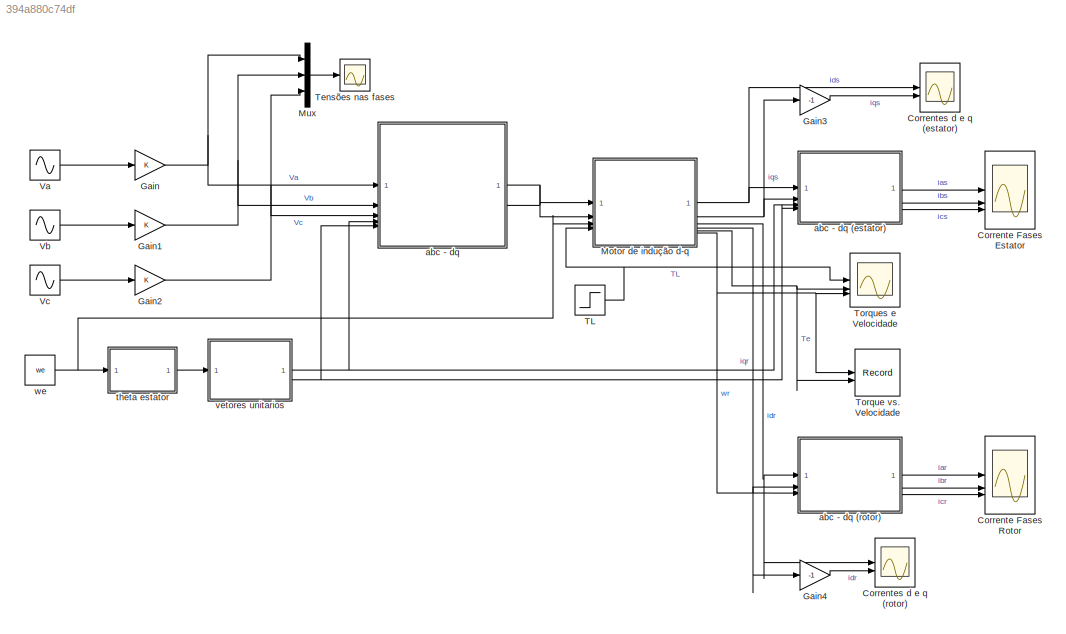
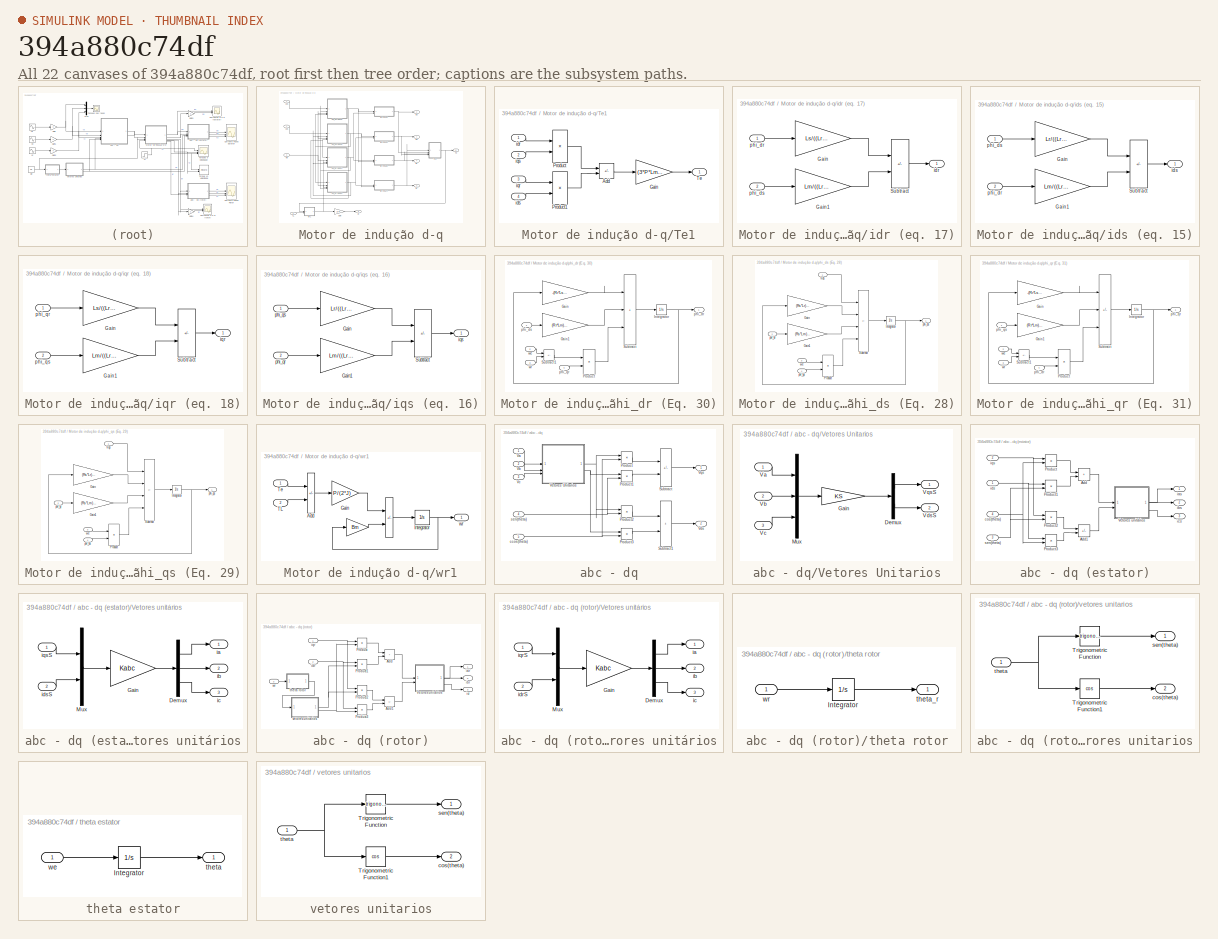
[diagram: thumbnail index - all 22 canvases of the model, root first then tree order]
MODEL slx_394a880c74df
KIND model
CONFIG AbsTol = auto
CONFIG EnableMultiTasking = on
CONFIG FixedStep = auto
CONFIG MaxStep = auto
CONFIG MinStep = auto
CONFIG RelTol = 1e-9
CONFIG SampleTimeConstraint = Unconstrained
CONFIG SolverName = ode45
CONFIG StartTime = 0.0
CONFIG StopTime = 0.3
BLOCK [Scope] Corrente Fases Estator
  Floating = off
  NumInputPorts = 3
  ScopeSpecificationString = Simulink.scopes.TimeScopeBlockCfg('CurrentConfiguration', extmgr.ConfigurationSet(extmgr.Configuration('Core','General UI',true),extmgr.Configuration('Core','Source UI',true),extmgr.Configuration('Sources','WiredSimulink',true,'DataLoggingVariableName','ScopeData2','DataLoggingSaveFormat','Array','DataLoggingDecimation','1','DataLoggingDecimateData',true),extmgr.Configuration('Visuals','Time Domai...<+2973ch>
BLOCK [Scope] Corrente Fases Rotor
  Floating = off
  NumInputPorts = 3
  ScopeSpecificationString = Simulink.scopes.TimeScopeBlockCfg('CurrentConfiguration', extmgr.ConfigurationSet(extmgr.Configuration('Core','General UI',true),extmgr.Configuration('Core','Source UI',true),extmgr.Configuration('Sources','WiredSimulink',true,'DataLoggingVariableName','ScopeData1','DataLoggingSaveFormat','Array','DataLoggingDecimation','1','DataLoggingDecimateData',true),extmgr.Configuration('Visuals','Time Domai...<+2973ch>
BLOCK [Scope] Correntes d e q (estator)
  Floating = off
  NumInputPorts = 2
  ScopeSpecificationString = Simulink.scopes.TimeScopeBlockCfg('CurrentConfiguration', extmgr.ConfigurationSet(extmgr.Configuration('Core','General UI',true),extmgr.Configuration('Core','Source UI',true),extmgr.Configuration('Sources','WiredSimulink',true,'DataLoggingVariableName','ScopeData2'),extmgr.Configuration('Visuals','Time Domain',true,'SerializedDisplays',{struct('MinYLimReal','-1.18934','MaxYLimReal','10.70402','YLa...<+1984ch>
BLOCK [Scope] Correntes d e q (rotor)
  Floating = off
  NumInputPorts = 2
  ScopeSpecificationString = Simulink.scopes.TimeScopeBlockCfg('CurrentConfiguration', extmgr.ConfigurationSet(extmgr.Configuration('Core','General UI',true),extmgr.Configuration('Core','Source UI',true),extmgr.Configuration('Sources','WiredSimulink',true,'DataLoggingVariableName','ScopeData1'),extmgr.Configuration('Visuals','Time Domain',true,'SerializedDisplays',{struct('MinYLimReal','-9.57327','MaxYLimReal','1.0637','YLabe...<+1980ch>
BLOCK [Gain] Gain
BLOCK [Gain] Gain1
BLOCK [Gain] Gain2
BLOCK [Gain] Gain3
  Gain = -1
BLOCK [Gain] Gain4
  Gain = -1
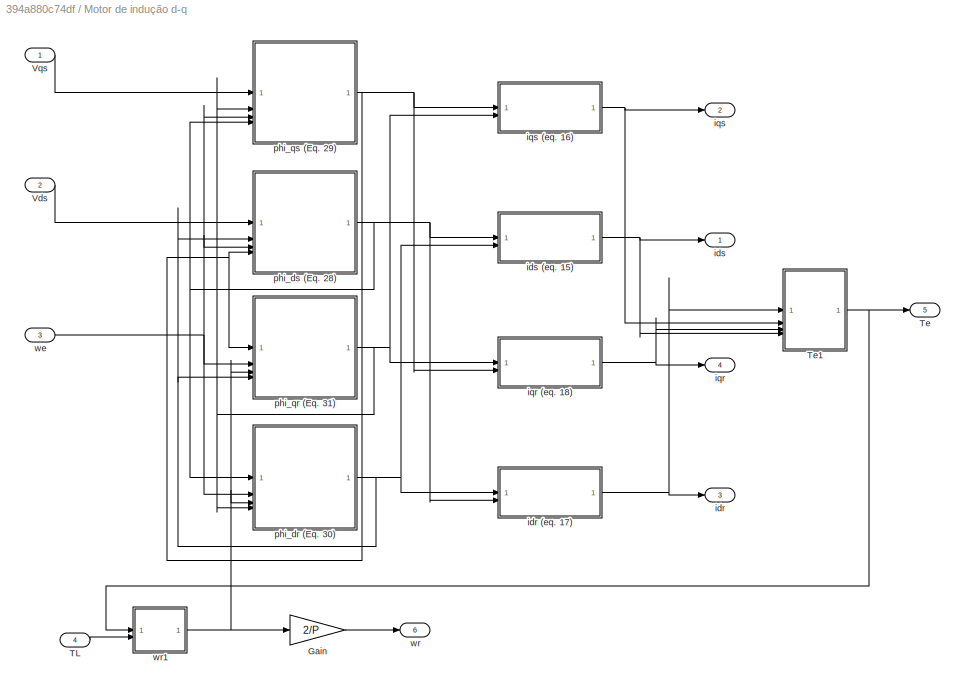
BLOCK [SubSystem] Motor de indução d-q
BLOCK [Gain] Motor de indução d-q/Gain
  Gain = 2/P
BLOCK [Inport] Motor de indução d-q/TL
  Port = 4
BLOCK [Outport] Motor de indução d-q/Te
  Port = 5
BLOCK [SubSystem] Motor de indução d-q/Te1
BLOCK [Sum] Motor de indução d-q/Te1/Add
  IconShape = rectangular
  Inputs = +-
BLOCK [Gain] Motor de indução d-q/Te1/Gain
  Gain = (3*P*Lm)/4
BLOCK [Product] Motor de indução d-q/Te1/Product
BLOCK [Product] Motor de indução d-q/Te1/Product1
BLOCK [Outport] Motor de indução d-q/Te1/Te
BLOCK [Inport] Motor de indução d-q/Te1/idr
BLOCK [Inport] Motor de indução d-q/Te1/ids
  Port = 4
BLOCK [Inport] Motor de indução d-q/Te1/iqr
  Port = 3
BLOCK [Inport] Motor de indução d-q/Te1/iqs
  Port = 2
BLOCK [Inport] Motor de indução d-q/Vds
  Port = 2
BLOCK [Inport] Motor de indução d-q/Vqs
BLOCK [Outport] Motor de indução d-q/idr
  Port = 3
BLOCK [SubSystem] Motor de indução d-q/idr (eq. 17)
BLOCK [Gain] Motor de indução d-q/idr (eq. 17)/Gain
  Gain = Ls/((Lr*Ls)-Lm^2)
BLOCK [Gain] Motor de indução d-q/idr (eq. 17)/Gain1
  Gain = Lm/((Lr*Ls)-Lm^2)
BLOCK [Sum] Motor de indução d-q/idr (eq. 17)/Subtract
  IconShape = rectangular
  Inputs = +-
BLOCK [Outport] Motor de indução d-q/idr (eq. 17)/idr
BLOCK [Inport] Motor de indução d-q/idr (eq. 17)/phi_dr
BLOCK [Inport] Motor de indução d-q/idr (eq. 17)/phi_ds
  Port = 2
BLOCK [Outport] Motor de indução d-q/ids
BLOCK [SubSystem] Motor de indução d-q/ids (eq. 15)
BLOCK [Gain] Motor de indução d-q/ids (eq. 15)/Gain
  Gain = Lr/((Lr*Ls)-Lm^2)
BLOCK [Gain] Motor de indução d-q/ids (eq. 15)/Gain1
  Gain = Lm/((Lr*Ls)-Lm^2)
BLOCK [Sum] Motor de indução d-q/ids (eq. 15)/Subtract
  IconShape = rectangular
  Inputs = +-
BLOCK [Outport] Motor de indução d-q/ids (eq. 15)/ids
BLOCK [Inport] Motor de indução d-q/ids (eq. 15)/phi_dr
  Port = 2
BLOCK [Inport] Motor de indução d-q/ids (eq. 15)/phi_ds
BLOCK [Outport] Motor de indução d-q/iqr
  Port = 4
BLOCK [SubSystem] Motor de indução d-q/iqr (eq. 18)
BLOCK [Gain] Motor de indução d-q/iqr (eq. 18)/Gain
  Gain = Ls/((Lr*Ls)-Lm^2)
BLOCK [Gain] Motor de indução d-q/iqr (eq. 18)/Gain1
  Gain = Lm/((Lr*Ls)-Lm^2)
BLOCK [Sum] Motor de indução d-q/iqr (eq. 18)/Subtract
  IconShape = rectangular
  Inputs = +-
BLOCK [Outport] Motor de indução d-q/iqr (eq. 18)/iqr
BLOCK [Inport] Motor de indução d-q/iqr (eq. 18)/phi_qr
BLOCK [Inport] Motor de indução d-q/iqr (eq. 18)/phi_qs
  Port = 2
BLOCK [Outport] Motor de indução d-q/iqs
  Port = 2
BLOCK [SubSystem] Motor de indução d-q/iqs (eq. 16)
BLOCK [Gain] Motor de indução d-q/iqs (eq. 16)/Gain
  Gain = Lr/((Lr*Ls)-Lm^2)
BLOCK [Gain] Motor de indução d-q/iqs (eq. 16)/Gain1
  Gain = Lm/((Lr*Ls)-Lm^2)
BLOCK [Sum] Motor de indução d-q/iqs (eq. 16)/Subtract
  IconShape = rectangular
  Inputs = +-
BLOCK [Outport] Motor de indução d-q/iqs (eq. 16)/iqs
BLOCK [Inport] Motor de indução d-q/iqs (eq. 16)/phi_qr
  Port = 2
BLOCK [Inport] Motor de indução d-q/iqs (eq. 16)/phi_qs
BLOCK [SubSystem] Motor de indução d-q/phi_dr (Eq. 30)
BLOCK [Gain] Motor de indução d-q/phi_dr (Eq. 30)/Gain
  Gain = -(Rr*Ls)/((Lr*Ls)-Lm^2)
BLOCK [Gain] Motor de indução d-q/phi_dr (Eq. 30)/Gain1
  Gain = (Rr*Lm)/((Lr*Ls)-Lm^2)
BLOCK [Integrator] Motor de indução d-q/phi_dr (Eq. 30)/Integrator
BLOCK [Product] Motor de indução d-q/phi_dr (Eq. 30)/Product
BLOCK [Sum] Motor de indução d-q/phi_dr (Eq. 30)/Subtract
  IconShape = rectangular
  Inputs = +++
BLOCK [Sum] Motor de indução d-q/phi_dr (Eq. 30)/Subtract1
  IconShape = rectangular
  Inputs = +-
BLOCK [Outport] Motor de indução d-q/phi_dr (Eq. 30)/phi_dr 
BLOCK [Inport] Motor de indução d-q/phi_dr (Eq. 30)/phi_ds
BLOCK [Inport] Motor de indução d-q/phi_dr (Eq. 30)/phi_qr
  Port = 4
BLOCK [Inport] Motor de indução d-q/phi_dr (Eq. 30)/we
  Port = 2
BLOCK [Inport] Motor de indução d-q/phi_dr (Eq. 30)/wr
  Port = 3
BLOCK [SubSystem] Motor de indução d-q/phi_ds (Eq. 28)
BLOCK [Gain] Motor de indução d-q/phi_ds (Eq. 28)/Gain
  Gain = (Rs*Lr)/((Lr*Ls)-Lm^2)
BLOCK [Gain] Motor de indução d-q/phi_ds (Eq. 28)/Gain1
  Gain = (Rs*Lm)/((Lr*Ls)-Lm^2)
BLOCK [Integrator] Motor de indução d-q/phi_ds (Eq. 28)/Integrator
BLOCK [Product] Motor de indução d-q/phi_ds (Eq. 28)/Product
BLOCK [Sum] Motor de indução d-q/phi_ds (Eq. 28)/Subtract
  IconShape = rectangular
  Inputs = +-++
BLOCK [Inport] Motor de indução d-q/phi_ds (Eq. 28)/Vds
BLOCK [Inport] Motor de indução d-q/phi_ds (Eq. 28)/phi_dr
  Port = 2
BLOCK [Outport] Motor de indução d-q/phi_ds (Eq. 28)/phi_ds 
BLOCK [Inport] Motor de indução d-q/phi_ds (Eq. 28)/phi_qs
  Port = 4
BLOCK [Inport] Motor de indução d-q/phi_ds (Eq. 28)/we
  Port = 3
BLOCK [SubSystem] Motor de indução d-q/phi_qr (Eq. 31)
BLOCK [Gain] Motor de indução d-q/phi_qr (Eq. 31)/Gain
  Gain = -(Rr*Ls)/((Lr*Ls)-Lm^2)
BLOCK [Gain] Motor de indução d-q/phi_qr (Eq. 31)/Gain1
  Gain = (Rr*Lm)/((Lr*Ls)-Lm^2)
BLOCK [Integrator] Motor de indução d-q/phi_qr (Eq. 31)/Integrator
BLOCK [Product] Motor de indução d-q/phi_qr (Eq. 31)/Product
BLOCK [Sum] Motor de indução d-q/phi_qr (Eq. 31)/Subtract
  IconShape = rectangular
  Inputs = ++-
BLOCK [Sum] Motor de indução d-q/phi_qr (Eq. 31)/Subtract1
  IconShape = rectangular
  Inputs = +-
BLOCK [Inport] Motor de indução d-q/phi_qr (Eq. 31)/phi_dr
  Port = 4
BLOCK [Outport] Motor de indução d-q/phi_qr (Eq. 31)/phi_qr 
BLOCK [Inport] Motor de indução d-q/phi_qr (Eq. 31)/phi_qs
BLOCK [Inport] Motor de indução d-q/phi_qr (Eq. 31)/we
  Port = 2
BLOCK [Inport] Motor de indução d-q/phi_qr (Eq. 31)/wr
  Port = 3
BLOCK [SubSystem] Motor de indução d-q/phi_qs (Eq. 29)
BLOCK [Gain] Motor de indução d-q/phi_qs (Eq. 29)/Gain
  Gain = (Rs*Lr)/((Lr*Ls)-Lm^2)
BLOCK [Gain] Motor de indução d-q/phi_qs (Eq. 29)/Gain1
  Gain = (Rs*Lm)/((Lr*Ls)-Lm^2)
BLOCK [Integrator] Motor de indução d-q/phi_qs (Eq. 29)/Integrator
BLOCK [Product] Motor de indução d-q/phi_qs (Eq. 29)/Product
BLOCK [Sum] Motor de indução d-q/phi_qs (Eq. 29)/Subtract
  IconShape = rectangular
  Inputs = +-+-
BLOCK [Inport] Motor de indução d-q/phi_qs (Eq. 29)/Vqs
BLOCK [Inport] Motor de indução d-q/phi_qs (Eq. 29)/phi_ds
  Port = 4
BLOCK [Inport] Motor de indução d-q/phi_qs (Eq. 29)/phi_qr
  Port = 2
BLOCK [Outport] Motor de indução d-q/phi_qs (Eq. 29)/phi_qs
BLOCK [Inport] Motor de indução d-q/phi_qs (Eq. 29)/we
  Port = 3
BLOCK [Inport] Motor de indução d-q/we
  Port = 3
BLOCK [Outport] Motor de indução d-q/wr
  Port = 6
BLOCK [SubSystem] Motor de indução d-q/wr1
BLOCK [Sum] Motor de indução d-q/wr1/ 
  IconShape = rectangular
  Inputs = +-
BLOCK [Gain] Motor de indução d-q/wr1/  
  Gain = Bm
BLOCK [Sum] Motor de indução d-q/wr1/Add
  IconShape = rectangular
  Inputs = +-
BLOCK [Gain] Motor de indução d-q/wr1/Gain
  Gain = P/(2*J)
BLOCK [Integrator] Motor de indução d-q/wr1/Integrator
BLOCK [Inport] Motor de indução d-q/wr1/TL
  Port = 2
BLOCK [Inport] Motor de indução d-q/wr1/Te
BLOCK [Outport] Motor de indução d-q/wr1/wr
BLOCK [Mux] Mux
  DisplayOption = bar
  Inputs = 3
BLOCK [Step] TL
  After = TL
  NameLocation = top
  SampleTime = 0
  Time = t
BLOCK [Scope] Tensões nas fases
  Floating = off
  NumInputPorts = 1
  ScopeSpecificationString = Simulink.scopes.TimeScopeBlockCfg('CurrentConfiguration', extmgr.ConfigurationSet(extmgr.Configuration('Core','General UI',true),extmgr.Configuration('Core','Source UI',true),extmgr.Configuration('Sources','WiredSimulink',true),extmgr.Configuration('Visuals','Time Domain',true,'SerializedDisplays',{struct('MinYLimReal','-388.90844','MaxYLimReal','388.90785','YLabelReal','','MinYLimMag',' 0.00000',...<+1418ch>
BLOCK [Record] Torque vs. Velocidade
  CompatibilityTag = XY
  FileSettingsInternal = {"entries":[{"content":{"excelSettings":{"content":{},"type":"Streamout.ExcelSettings"}},"type":"Streamout.FileSettingStorage","uuid":""}],"packageUris":["http:\/\/schema.mathworks.com\/mf0\/streamout_blocks\/R2020a"],"version":"1.0"}
  Layout = [1 1]
  SignalsInternal = {"entries":[{"content":{"signals":[{"content":{"blockPath":[],"channel":[],"dimensions":[1],"domain":"","lineColor":"#a2142f","plots":[1],"port":1,"sid":[""],"signalID":477,"signalName":"wr"},"type":"RecordBlkView.Signal","uuid":""},{"content":{"blockPath":[],"channel":[],"dimensions":[1],"domain":"","lineColor":"#139fff","plots":[1],"port":2,"sid":[""],"signalID":481,"signalName":"Te"},"type":"Re...<+176ch>
  VisualizationBindings = {"xyplotplugin":{"info":[{"series":[{"bindingParametersList":[{"parameter":"X-Axis","signalID":477,"signalName":"wr"},{"parameter":"Y-Axis","signalID":481,"signalName":"Te"}],"seriesID":36260}],"subplotID":1}]}}
BLOCK [Scope] Torques e Velocidade
  Floating = off
  NumInputPorts = 3
  ScopeSpecificationString = Simulink.scopes.TimeScopeBlockCfg('CurrentConfiguration', extmgr.ConfigurationSet(extmgr.Configuration('Core','General UI',true),extmgr.Configuration('Core','Source UI',true),extmgr.Configuration('Sources','WiredSimulink',true,'DataLoggingVariableName','ScopeData1','DataLoggingSaveFormat','Array','DataLoggingDecimation','1','DataLoggingDecimateData',true),extmgr.Configuration('Visuals','Time Domai...<+2947ch>
BLOCK [Sin] Va
  Amplitude = Vm
  Frequency = 2*pi*f
  Phase = phi_a
  SampleTime = 0
BLOCK [Sin] Vb
  Amplitude = Vm
  Frequency = 2*pi*f
  Phase = phi_b
  SampleTime = 0
BLOCK [Sin] Vc
  Amplitude = Vm
  Frequency = 2*pi*f
  Phase = phi_c
  SampleTime = 0
BLOCK [SubSystem] abc - dq
BLOCK [SubSystem] abc - dq (estator)
BLOCK [Sum] abc - dq (estator)/Add
  IconShape = rectangular
BLOCK [Sum] abc - dq (estator)/Add1
  IconShape = rectangular
  Inputs = -+
BLOCK [Product] abc - dq (estator)/Product
BLOCK [Product] abc - dq (estator)/Product1
BLOCK [Product] abc - dq (estator)/Product2
BLOCK [Product] abc - dq (estator)/Product3
BLOCK [SubSystem] abc - dq (estator)/Vetores unitários
BLOCK [Demux] abc - dq (estator)/Vetores unitários/Demux
  Outputs = 3
BLOCK [Gain] abc - dq (estator)/Vetores unitários/Gain
  Gain = Kabc
  Multiplication = Matrix(K*u)
BLOCK [Mux] abc - dq (estator)/Vetores unitários/Mux
  DisplayOption = bar
  Inputs = 2
BLOCK [Outport] abc - dq (estator)/Vetores unitários/ia
BLOCK [Outport] abc - dq (estator)/Vetores unitários/ib
  Port = 2
BLOCK [Outport] abc - dq (estator)/Vetores unitários/ic
  Port = 3
BLOCK [Inport] abc - dq (estator)/Vetores unitários/idsS
  Port = 2
BLOCK [Inport] abc - dq (estator)/Vetores unitários/iqsS
BLOCK [Inport] abc - dq (estator)/cos(theta)
  Port = 4
BLOCK [Outport] abc - dq (estator)/ias
BLOCK [Outport] abc - dq (estator)/ibs
  Port = 2
BLOCK [Outport] abc - dq (estator)/ics
  Port = 3
BLOCK [Inport] abc - dq (estator)/ids
BLOCK [Inport] abc - dq (estator)/iqs
  Port = 2
BLOCK [Inport] abc - dq (estator)/sen(theta)
  Port = 3
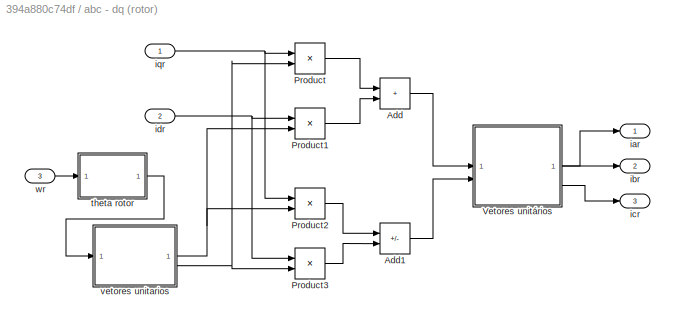
BLOCK [SubSystem] abc - dq (rotor)
BLOCK [Sum] abc - dq (rotor)/Add
  IconShape = rectangular
BLOCK [Sum] abc - dq (rotor)/Add1
  IconShape = rectangular
  Inputs = -+
BLOCK [Product] abc - dq (rotor)/Product
BLOCK [Product] abc - dq (rotor)/Product1
BLOCK [Product] abc - dq (rotor)/Product2
BLOCK [Product] abc - dq (rotor)/Product3
BLOCK [SubSystem] abc - dq (rotor)/Vetores unitários
BLOCK [Demux] abc - dq (rotor)/Vetores unitários/Demux
  Outputs = 3
BLOCK [Gain] abc - dq (rotor)/Vetores unitários/Gain
  Gain = Kabc
  Multiplication = Matrix(K*u)
BLOCK [Mux] abc - dq (rotor)/Vetores unitários/Mux
  DisplayOption = bar
  Inputs = 2
BLOCK [Outport] abc - dq (rotor)/Vetores unitários/ia
BLOCK [Outport] abc - dq (rotor)/Vetores unitários/ib
  Port = 2
BLOCK [Outport] abc - dq (rotor)/Vetores unitários/ic
  Port = 3
BLOCK [Inport] abc - dq (rotor)/Vetores unitários/idrS
  Port = 2
BLOCK [Inport] abc - dq (rotor)/Vetores unitários/iqrS
BLOCK [Outport] abc - dq (rotor)/iar
BLOCK [Outport] abc - dq (rotor)/ibr
  Port = 2
BLOCK [Outport] abc - dq (rotor)/icr
  Port = 3
BLOCK [Inport] abc - dq (rotor)/idr
  Port = 2
BLOCK [Inport] abc - dq (rotor)/iqr
BLOCK [SubSystem] abc - dq (rotor)/theta rotor
BLOCK [Integrator] abc - dq (rotor)/theta rotor/Integrator
BLOCK [Outport] abc - dq (rotor)/theta rotor/theta_r
BLOCK [Inport] abc - dq (rotor)/theta rotor/wr
BLOCK [SubSystem] abc - dq (rotor)/vetores unitarios
BLOCK [Trigonometry] abc - dq (rotor)/vetores unitarios/Trigonometric Function
BLOCK [Trigonometry] abc - dq (rotor)/vetores unitarios/Trigonometric Function1
  Operator = cos
BLOCK [Outport] abc - dq (rotor)/vetores unitarios/cos(theta)
  Port = 2
BLOCK [Outport] abc - dq (rotor)/vetores unitarios/sen(theta)
BLOCK [Inport] abc - dq (rotor)/vetores unitarios/theta
BLOCK [Inport] abc - dq (rotor)/wr
  Port = 3
BLOCK [Product] abc - dq/Product
BLOCK [Product] abc - dq/Product1
BLOCK [Product] abc - dq/Product2
BLOCK [Product] abc - dq/Product3
BLOCK [Sum] abc - dq/Subtract
  IconShape = rectangular
  Inputs = +-
BLOCK [Sum] abc - dq/Subtract1
  IconShape = rectangular
BLOCK [Inport] abc - dq/Va
BLOCK [Inport] abc - dq/Vb
  Port = 2
BLOCK [Inport] abc - dq/Vc
  Port = 3
BLOCK [Outport] abc - dq/Vds
  Port = 2
BLOCK [SubSystem] abc - dq/Vetores Unitarios
BLOCK [Demux] abc - dq/Vetores Unitarios/Demux
  Outputs = 2
BLOCK [Gain] abc - dq/Vetores Unitarios/Gain
  Gain = KS
  Multiplication = Matrix(K*u)
BLOCK [Mux] abc - dq/Vetores Unitarios/Mux
  DisplayOption = bar
  Inputs = 3
BLOCK [Inport] abc - dq/Vetores Unitarios/Va
BLOCK [Inport] abc - dq/Vetores Unitarios/Vb
  Port = 2
BLOCK [Inport] abc - dq/Vetores Unitarios/Vc
  Port = 3
BLOCK [Outport] abc - dq/Vetores Unitarios/VdsS
  Port = 2
BLOCK [Outport] abc - dq/Vetores Unitarios/VqsS
BLOCK [Outport] abc - dq/Vqs
BLOCK [Inport] abc - dq/ccos(theta)
  Port = 5
BLOCK [Inport] abc - dq/sen(theta)
  Port = 4
BLOCK [SubSystem] theta estator
BLOCK [Integrator] theta estator/Integrator
BLOCK [Outport] theta estator/theta
BLOCK [Inport] theta estator/we
BLOCK [SubSystem] vetores unitarios
BLOCK [Trigonometry] vetores unitarios/Trigonometric Function
BLOCK [Trigonometry] vetores unitarios/Trigonometric Function1
  Operator = cos
BLOCK [Outport] vetores unitarios/cos(theta)
  Port = 2
BLOCK [Outport] vetores unitarios/sen(theta)
BLOCK [Inport] vetores unitarios/theta
BLOCK [Constant] we
  Value = we
NET Gain1:1 -> Mux:2, abc - dq:2
NET Gain2:1 -> Mux:3, abc - dq:3
LINE Gain3:1 -> Correntes d e q (estator):2
LINE Gain4:1 -> Correntes d e q (rotor):2
NET Gain:1 -> Mux:1, abc - dq:1
LINE Motor de indução d-q/Gain:1 -> Motor de indução d-q/wr:1
LINE Motor de indução d-q/TL:1 -> Motor de indução d-q/wr1:2
LINE Motor de indução d-q/Te1/Add:1 -> Motor de indução d-q/Te1/Gain:1
LINE Motor de indução d-q/Te1/Gain:1 -> Motor de indução d-q/Te1/Te:1
LINE Motor de indução d-q/Te1/Product1:1 -> Motor de indução d-q/Te1/Add:2
LINE Motor de indução d-q/Te1/Product:1 -> Motor de indução d-q/Te1/Add:1
LINE Motor de indução d-q/Te1/idr:1 -> Motor de indução d-q/Te1/Product:1
LINE Motor de indução d-q/Te1/ids:1 -> Motor de indução d-q/Te1/Product1:2
LINE Motor de indução d-q/Te1/iqr:1 -> Motor de indução d-q/Te1/Product1:1
LINE Motor de indução d-q/Te1/iqs:1 -> Motor de indução d-q/Te1/Product:2
NET Motor de indução d-q/Te1:1 -> Motor de indução d-q/Te:1, Motor de indução d-q/wr1:1
LINE Motor de indução d-q/Vds:1 -> Motor de indução d-q/phi_ds (Eq. 28):1
LINE Motor de indução d-q/Vqs:1 -> Motor de indução d-q/phi_qs (Eq. 29):1
LINE Motor de indução d-q/idr (eq. 17)/Gain1:1 -> Motor de indução d-q/idr (eq. 17)/Subtract:2
LINE Motor de indução d-q/idr (eq. 17)/Gain:1 -> Motor de indução d-q/idr (eq. 17)/Subtract:1
LINE Motor de indução d-q/idr (eq. 17)/Subtract:1 -> Motor de indução d-q/idr (eq. 17)/idr:1
LINE Motor de indução d-q/idr (eq. 17)/phi_dr:1 -> Motor de indução d-q/idr (eq. 17)/Gain:1
LINE Motor de indução d-q/idr (eq. 17)/phi_ds:1 -> Motor de indução d-q/idr (eq. 17)/Gain1:1
NET Motor de indução d-q/idr (eq. 17):1 -> Motor de indução d-q/Te1:1, Motor de indução d-q/idr:1
LINE Motor de indução d-q/ids (eq. 15)/Gain1:1 -> Motor de indução d-q/ids (eq. 15)/Subtract:2
LINE Motor de indução d-q/ids (eq. 15)/Gain:1 -> Motor de indução d-q/ids (eq. 15)/Subtract:1
LINE Motor de indução d-q/ids (eq. 15)/Subtract:1 -> Motor de indução d-q/ids (eq. 15)/ids:1
LINE Motor de indução d-q/ids (eq. 15)/phi_dr:1 -> Motor de indução d-q/ids (eq. 15)/Gain1:1
LINE Motor de indução d-q/ids (eq. 15)/phi_ds:1 -> Motor de indução d-q/ids (eq. 15)/Gain:1
NET Motor de indução d-q/ids (eq. 15):1 -> Motor de indução d-q/Te1:4, Motor de indução d-q/ids:1
LINE Motor de indução d-q/iqr (eq. 18)/Gain1:1 -> Motor de indução d-q/iqr (eq. 18)/Subtract:2
LINE Motor de indução d-q/iqr (eq. 18)/Gain:1 -> Motor de indução d-q/iqr (eq. 18)/Subtract:1
LINE Motor de indução d-q/iqr (eq. 18)/Subtract:1 -> Motor de indução d-q/iqr (eq. 18)/iqr:1
LINE Motor de indução d-q/iqr (eq. 18)/phi_qr:1 -> Motor de indução d-q/iqr (eq. 18)/Gain:1
LINE Motor de indução d-q/iqr (eq. 18)/phi_qs:1 -> Motor de indução d-q/iqr (eq. 18)/Gain1:1
NET Motor de indução d-q/iqr (eq. 18):1 -> Motor de indução d-q/Te1:3, Motor de indução d-q/iqr:1
LINE Motor de indução d-q/iqs (eq. 16)/Gain1:1 -> Motor de indução d-q/iqs (eq. 16)/Subtract:2
LINE Motor de indução d-q/iqs (eq. 16)/Gain:1 -> Motor de indução d-q/iqs (eq. 16)/Subtract:1
LINE Motor de indução d-q/iqs (eq. 16)/Subtract:1 -> Motor de indução d-q/iqs (eq. 16)/iqs:1
LINE Motor de indução d-q/iqs (eq. 16)/phi_qr:1 -> Motor de indução d-q/iqs (eq. 16)/Gain1:1
LINE Motor de indução d-q/iqs (eq. 16)/phi_qs:1 -> Motor de indução d-q/iqs (eq. 16)/Gain:1
NET Motor de indução d-q/iqs (eq. 16):1 -> Motor de indução d-q/Te1:2, Motor de indução d-q/iqs:1
LINE Motor de indução d-q/phi_dr (Eq. 30)/Gain1:1 -> Motor de indução d-q/phi_dr (Eq. 30)/Subtract:2
LINE Motor de indução d-q/phi_dr (Eq. 30)/Gain:1 -> Motor de indução d-q/phi_dr (Eq. 30)/Subtract:1
NET Motor de indução d-q/phi_dr (Eq. 30)/Integrator:1 -> Motor de indução d-q/phi_dr (Eq. 30)/Gain:1, Motor de indução d-q/phi_dr (Eq. 30)/phi_dr :1
LINE Motor de indução d-q/phi_dr (Eq. 30)/Product:1 -> Motor de indução d-q/phi_dr (Eq. 30)/Subtract:3
LINE Motor de indução d-q/phi_dr (Eq. 30)/Subtract1:1 -> Motor de indução d-q/phi_dr (Eq. 30)/Product:1
LINE Motor de indução d-q/phi_dr (Eq. 30)/Subtract:1 -> Motor de indução d-q/phi_dr (Eq. 30)/Integrator:1
LINE Motor de indução d-q/phi_dr (Eq. 30)/phi_ds:1 -> Motor de indução d-q/phi_dr (Eq. 30)/Gain1:1
LINE Motor de indução d-q/phi_dr (Eq. 30)/phi_qr:1 -> Motor de indução d-q/phi_dr (Eq. 30)/Product:2
LINE Motor de indução d-q/phi_dr (Eq. 30)/we:1 -> Motor de indução d-q/phi_dr (Eq. 30)/Subtract1:1
LINE Motor de indução d-q/phi_dr (Eq. 30)/wr:1 -> Motor de indução d-q/phi_dr (Eq. 30)/Subtract1:2
NET Motor de indução d-q/phi_dr (Eq. 30):1 -> Motor de indução d-q/idr (eq. 17):1, Motor de indução d-q/ids (eq. 15):2, Motor de indução d-q/phi_ds (Eq. 28):2, Motor de indução d-q/phi_qr (Eq. 31):4
LINE Motor de indução d-q/phi_ds (Eq. 28)/Gain1:1 -> Motor de indução d-q/phi_ds (Eq. 28)/Subtract:3
LINE Motor de indução d-q/phi_ds (Eq. 28)/Gain:1 -> Motor de indução d-q/phi_ds (Eq. 28)/Subtract:2
NET Motor de indução d-q/phi_ds (Eq. 28)/Integrator:1 -> Motor de indução d-q/phi_ds (Eq. 28)/Gain:1, Motor de indução d-q/phi_ds (Eq. 28)/phi_ds :1
LINE Motor de indução d-q/phi_ds (Eq. 28)/Product:1 -> Motor de indução d-q/phi_ds (Eq. 28)/Subtract:4
LINE Motor de indução d-q/phi_ds (Eq. 28)/Subtract:1 -> Motor de indução d-q/phi_ds (Eq. 28)/Integrator:1
LINE Motor de indução d-q/phi_ds (Eq. 28)/Vds:1 -> Motor de indução d-q/phi_ds (Eq. 28)/Subtract:1
LINE Motor de indução d-q/phi_ds (Eq. 28)/phi_dr:1 -> Motor de indução d-q/phi_ds (Eq. 28)/Gain1:1
LINE Motor de indução d-q/phi_ds (Eq. 28)/phi_qs:1 -> Motor de indução d-q/phi_ds (Eq. 28)/Product:2
LINE Motor de indução d-q/phi_ds (Eq. 28)/we:1 -> Motor de indução d-q/phi_ds (Eq. 28)/Product:1
NET Motor de indução d-q/phi_ds (Eq. 28):1 -> Motor de indução d-q/idr (eq. 17):2, Motor de indução d-q/ids (eq. 15):1, Motor de indução d-q/phi_dr (Eq. 30):1, Motor de indução d-q/phi_qs (Eq. 29):4
LINE Motor de indução d-q/phi_qr (Eq. 31)/Gain1:1 -> Motor de indução d-q/phi_qr (Eq. 31)/Subtract:2
LINE Motor de indução d-q/phi_qr (Eq. 31)/Gain:1 -> Motor de indução d-q/phi_qr (Eq. 31)/Subtract:1
NET Motor de indução d-q/phi_qr (Eq. 31)/Integrator:1 -> Motor de indução d-q/phi_qr (Eq. 31)/Gain:1, Motor de indução d-q/phi_qr (Eq. 31)/phi_qr :1
LINE Motor de indução d-q/phi_qr (Eq. 31)/Product:1 -> Motor de indução d-q/phi_qr (Eq. 31)/Subtract:3
LINE Motor de indução d-q/phi_qr (Eq. 31)/Subtract1:1 -> Motor de indução d-q/phi_qr (Eq. 31)/Product:1
LINE Motor de indução d-q/phi_qr (Eq. 31)/Subtract:1 -> Motor de indução d-q/phi_qr (Eq. 31)/Integrator:1
LINE Motor de indução d-q/phi_qr (Eq. 31)/phi_dr:1 -> Motor de indução d-q/phi_qr (Eq. 31)/Product:2
LINE Motor de indução d-q/phi_qr (Eq. 31)/phi_qs:1 -> Motor de indução d-q/phi_qr (Eq. 31)/Gain1:1
LINE Motor de indução d-q/phi_qr (Eq. 31)/we:1 -> Motor de indução d-q/phi_qr (Eq. 31)/Subtract1:1
LINE Motor de indução d-q/phi_qr (Eq. 31)/wr:1 -> Motor de indução d-q/phi_qr (Eq. 31)/Subtract1:2
NET Motor de indução d-q/phi_qr (Eq. 31):1 -> Motor de indução d-q/iqr (eq. 18):1, Motor de indução d-q/iqs (eq. 16):2, Motor de indução d-q/phi_dr (Eq. 30):4, Motor de indução d-q/phi_qs (Eq. 29):2
LINE Motor de indução d-q/phi_qs (Eq. 29)/Gain1:1 -> Motor de indução d-q/phi_qs (Eq. 29)/Subtract:3
LINE Motor de indução d-q/phi_qs (Eq. 29)/Gain:1 -> Motor de indução d-q/phi_qs (Eq. 29)/Subtract:2
NET Motor de indução d-q/phi_qs (Eq. 29)/Integrator:1 -> Motor de indução d-q/phi_qs (Eq. 29)/Gain:1, Motor de indução d-q/phi_qs (Eq. 29)/phi_qs:1
LINE Motor de indução d-q/phi_qs (Eq. 29)/Product:1 -> Motor de indução d-q/phi_qs (Eq. 29)/Subtract:4
LINE Motor de indução d-q/phi_qs (Eq. 29)/Subtract:1 -> Motor de indução d-q/phi_qs (Eq. 29)/Integrator:1
LINE Motor de indução d-q/phi_qs (Eq. 29)/Vqs:1 -> Motor de indução d-q/phi_qs (Eq. 29)/Subtract:1
LINE Motor de indução d-q/phi_qs (Eq. 29)/phi_ds:1 -> Motor de indução d-q/phi_qs (Eq. 29)/Product:2
LINE Motor de indução d-q/phi_qs (Eq. 29)/phi_qr:1 -> Motor de indução d-q/phi_qs (Eq. 29)/Gain1:1
LINE Motor de indução d-q/phi_qs (Eq. 29)/we:1 -> Motor de indução d-q/phi_qs (Eq. 29)/Product:1
NET Motor de indução d-q/phi_qs (Eq. 29):1 -> Motor de indução d-q/iqr (eq. 18):2, Motor de indução d-q/iqs (eq. 16):1, Motor de indução d-q/phi_ds (Eq. 28):4, Motor de indução d-q/phi_qr (Eq. 31):1
NET Motor de indução d-q/we:1 -> Motor de indução d-q/phi_dr (Eq. 30):2, Motor de indução d-q/phi_ds (Eq. 28):3, Motor de indução d-q/phi_qr (Eq. 31):2, Motor de indução d-q/phi_qs (Eq. 29):3
LINE Motor de indução d-q/wr1/  :1 -> Motor de indução d-q/wr1/ :2
LINE Motor de indução d-q/wr1/ :1 -> Motor de indução d-q/wr1/Integrator:1
LINE Motor de indução d-q/wr1/Add:1 -> Motor de indução d-q/wr1/Gain:1
LINE Motor de indução d-q/wr1/Gain:1 -> Motor de indução d-q/wr1/ :1
NET Motor de indução d-q/wr1/Integrator:1 -> Motor de indução d-q/wr1/  :1, Motor de indução d-q/wr1/wr:1
LINE Motor de indução d-q/wr1/TL:1 -> Motor de indução d-q/wr1/Add:2
LINE Motor de indução d-q/wr1/Te:1 -> Motor de indução d-q/wr1/Add:1
NET Motor de indução d-q/wr1:1 -> Motor de indução d-q/Gain:1, Motor de indução d-q/phi_dr (Eq. 30):3, Motor de indução d-q/phi_qr (Eq. 31):3
NET Motor de indução d-q:1 -> Correntes d e q (estator):1, abc - dq (estator):1
NET Motor de indução d-q:2 -> Gain3:1, abc - dq (estator):2
NET Motor de indução d-q:3 -> Correntes d e q (rotor):1, abc - dq (rotor):1
NET Motor de indução d-q:4 -> Gain4:1, abc - dq (rotor):2
NET Motor de indução d-q:5 -> Torque vs. Velocidade:2, Torques e Velocidade:2
NET Motor de indução d-q:6 -> Torque vs. Velocidade:1, Torques e Velocidade:3, abc - dq (rotor):3
LINE Mux:1 -> Tensões nas fases:1
NET TL:1 -> Motor de indução d-q:4, Torques e Velocidade:1
LINE Va:1 -> Gain:1
LINE Vb:1 -> Gain1:1
LINE Vc:1 -> Gain2:1
LINE abc - dq (estator)/Add1:1 -> abc - dq (estator)/Vetores unitários:2
LINE abc - dq (estator)/Add:1 -> abc - dq (estator)/Vetores unitários:1
LINE abc - dq (estator)/Product1:1 -> abc - dq (estator)/Add:2
LINE abc - dq (estator)/Product2:1 -> abc - dq (estator)/Add1:1
LINE abc - dq (estator)/Product3:1 -> abc - dq (estator)/Add1:2
LINE abc - dq (estator)/Product:1 -> abc - dq (estator)/Add:1
LINE abc - dq (estator)/Vetores unitários/Demux:1 -> abc - dq (estator)/Vetores unitários/ia:1
LINE abc - dq (estator)/Vetores unitários/Demux:2 -> abc - dq (estator)/Vetores unitários/ib:1
LINE abc - dq (estator)/Vetores unitários/Demux:3 -> abc - dq (estator)/Vetores unitários/ic:1
LINE abc - dq (estator)/Vetores unitários/Gain:1 -> abc - dq (estator)/Vetores unitários/Demux:1
LINE abc - dq (estator)/Vetores unitários/Mux:1 -> abc - dq (estator)/Vetores unitários/Gain:1
LINE abc - dq (estator)/Vetores unitários/idsS:1 -> abc - dq (estator)/Vetores unitários/Mux:2
LINE abc - dq (estator)/Vetores unitários/iqsS:1 -> abc - dq (estator)/Vetores unitários/Mux:1
LINE abc - dq (estator)/Vetores unitários:1 -> abc - dq (estator)/ias:1
LINE abc - dq (estator)/Vetores unitários:2 -> abc - dq (estator)/ibs:1
LINE abc - dq (estator)/Vetores unitários:3 -> abc - dq (estator)/ics:1
NET abc - dq (estator)/cos(theta):1 -> abc - dq (estator)/Product3:2, abc - dq (estator)/Product:2
NET abc - dq (estator)/ids:1 -> abc - dq (estator)/Product1:1, abc - dq (estator)/Product3:1
NET abc - dq (estator)/iqs:1 -> abc - dq (estator)/Product2:1, abc - dq (estator)/Product:1
NET abc - dq (estator)/sen(theta):1 -> abc - dq (estator)/Product1:2, abc - dq (estator)/Product2:2
LINE abc - dq (estator):1 -> Corrente Fases Estator:1
LINE abc - dq (estator):2 -> Corrente Fases Estator:2
LINE abc - dq (estator):3 -> Corrente Fases Estator:3
LINE abc - dq (rotor)/Add1:1 -> abc - dq (rotor)/Vetores unitários:2
LINE abc - dq (rotor)/Add:1 -> abc - dq (rotor)/Vetores unitários:1
LINE abc - dq (rotor)/Product1:1 -> abc - dq (rotor)/Add:2
LINE abc - dq (rotor)/Product2:1 -> abc - dq (rotor)/Add1:1
LINE abc - dq (rotor)/Product3:1 -> abc - dq (rotor)/Add1:2
LINE abc - dq (rotor)/Product:1 -> abc - dq (rotor)/Add:1
LINE abc - dq (rotor)/Vetores unitários/Demux:1 -> abc - dq (rotor)/Vetores unitários/ia:1
LINE abc - dq (rotor)/Vetores unitários/Demux:2 -> abc - dq (rotor)/Vetores unitários/ib:1
LINE abc - dq (rotor)/Vetores unitários/Demux:3 -> abc - dq (rotor)/Vetores unitários/ic:1
LINE abc - dq (rotor)/Vetores unitários/Gain:1 -> abc - dq (rotor)/Vetores unitários/Demux:1
LINE abc - dq (rotor)/Vetores unitários/Mux:1 -> abc - dq (rotor)/Vetores unitários/Gain:1
LINE abc - dq (rotor)/Vetores unitários/idrS:1 -> abc - dq (rotor)/Vetores unitários/Mux:2
LINE abc - dq (rotor)/Vetores unitários/iqrS:1 -> abc - dq (rotor)/Vetores unitários/Mux:1
LINE abc - dq (rotor)/Vetores unitários:1 -> abc - dq (rotor)/iar:1
LINE abc - dq (rotor)/Vetores unitários:2 -> abc - dq (rotor)/ibr:1
LINE abc - dq (rotor)/Vetores unitários:3 -> abc - dq (rotor)/icr:1
NET abc - dq (rotor)/idr:1 -> abc - dq (rotor)/Product1:1, abc - dq (rotor)/Product3:1
NET abc - dq (rotor)/iqr:1 -> abc - dq (rotor)/Product2:1, abc - dq (rotor)/Product:1
LINE abc - dq (rotor)/theta rotor/Integrator:1 -> abc - dq (rotor)/theta rotor/theta_r:1
LINE abc - dq (rotor)/theta rotor/wr:1 -> abc - dq (rotor)/theta rotor/Integrator:1
LINE abc - dq (rotor)/theta rotor:1 -> abc - dq (rotor)/vetores unitarios:1
LINE abc - dq (rotor)/vetores unitarios/Trigonometric Function1:1 -> abc - dq (rotor)/vetores unitarios/cos(theta):1
LINE abc - dq (rotor)/vetores unitarios/Trigonometric Function:1 -> abc - dq (rotor)/vetores unitarios/sen(theta):1
NET abc - dq (rotor)/vetores unitarios/theta:1 -> abc - dq (rotor)/vetores unitarios/Trigonometric Function1:1, abc - dq (rotor)/vetores unitarios/Trigonometric Function:1
NET abc - dq (rotor)/vetores unitarios:1 -> abc - dq (rotor)/Product1:2, abc - dq (rotor)/Product2:2
NET abc - dq (rotor)/vetores unitarios:2 -> abc - dq (rotor)/Product3:2, abc - dq (rotor)/Product:2
LINE abc - dq (rotor)/wr:1 -> abc - dq (rotor)/theta rotor:1
LINE abc - dq (rotor):1 -> Corrente Fases Rotor:1
LINE abc - dq (rotor):2 -> Corrente Fases Rotor:2
LINE abc - dq (rotor):3 -> Corrente Fases Rotor:3
LINE abc - dq/Product1:1 -> abc - dq/Subtract:2
LINE abc - dq/Product2:1 -> abc - dq/Subtract1:1
LINE abc - dq/Product3:1 -> abc - dq/Subtract1:2
LINE abc - dq/Product:1 -> abc - dq/Subtract:1
LINE abc - dq/Subtract1:1 -> abc - dq/Vds:1
LINE abc - dq/Subtract:1 -> abc - dq/Vqs:1
LINE abc - dq/Va:1 -> abc - dq/Vetores Unitarios:1
LINE abc - dq/Vb:1 -> abc - dq/Vetores Unitarios:2
LINE abc - dq/Vc:1 -> abc - dq/Vetores Unitarios:3
LINE abc - dq/Vetores Unitarios/Demux:1 -> abc - dq/Vetores Unitarios/VqsS:1
LINE abc - dq/Vetores Unitarios/Demux:2 -> abc - dq/Vetores Unitarios/VdsS:1
LINE abc - dq/Vetores Unitarios/Gain:1 -> abc - dq/Vetores Unitarios/Demux:1
LINE abc - dq/Vetores Unitarios/Mux:1 -> abc - dq/Vetores Unitarios/Gain:1
LINE abc - dq/Vetores Unitarios/Va:1 -> abc - dq/Vetores Unitarios/Mux:1
LINE abc - dq/Vetores Unitarios/Vb:1 -> abc - dq/Vetores Unitarios/Mux:2
LINE abc - dq/Vetores Unitarios/Vc:1 -> abc - dq/Vetores Unitarios/Mux:3
NET abc - dq/Vetores Unitarios:1 -> abc - dq/Product2:1, abc - dq/Product:1
NET abc - dq/Vetores Unitarios:2 -> abc - dq/Product1:1, abc - dq/Product3:1
NET abc - dq/ccos(theta):1 -> abc - dq/Product3:2, abc - dq/Product:2
NET abc - dq/sen(theta):1 -> abc - dq/Product1:2, abc - dq/Product2:2
LINE abc - dq:1 -> Motor de indução d-q:1
LINE abc - dq:2 -> Motor de indução d-q:2
LINE theta estator/Integrator:1 -> theta estator/theta:1
LINE theta estator/we:1 -> theta estator/Integrator:1
LINE theta estator:1 -> vetores unitarios:1
LINE vetores unitarios/Trigonometric Function1:1 -> vetores unitarios/cos(theta):1
LINE vetores unitarios/Trigonometric Function:1 -> vetores unitarios/sen(theta):1
NET vetores unitarios/theta:1 -> vetores unitarios/Trigonometric Function1:1, vetores unitarios/Trigonometric Function:1
NET vetores unitarios:1 -> abc - dq (estator):3, abc - dq:4
NET vetores unitarios:2 -> abc - dq (estator):4, abc - dq:5
NET we:1 -> Motor de indução d-q:3, theta estator:1
note: NET lines group one-source signal fan-out (src -> all destinations, sorted); 1:1 wires keep LINE
